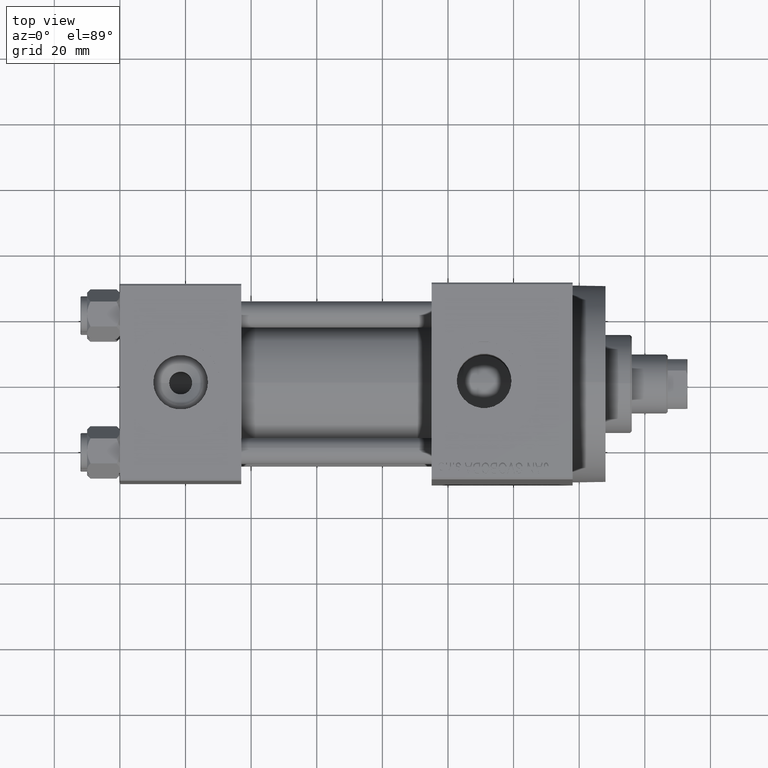
[diagram: clean part render]
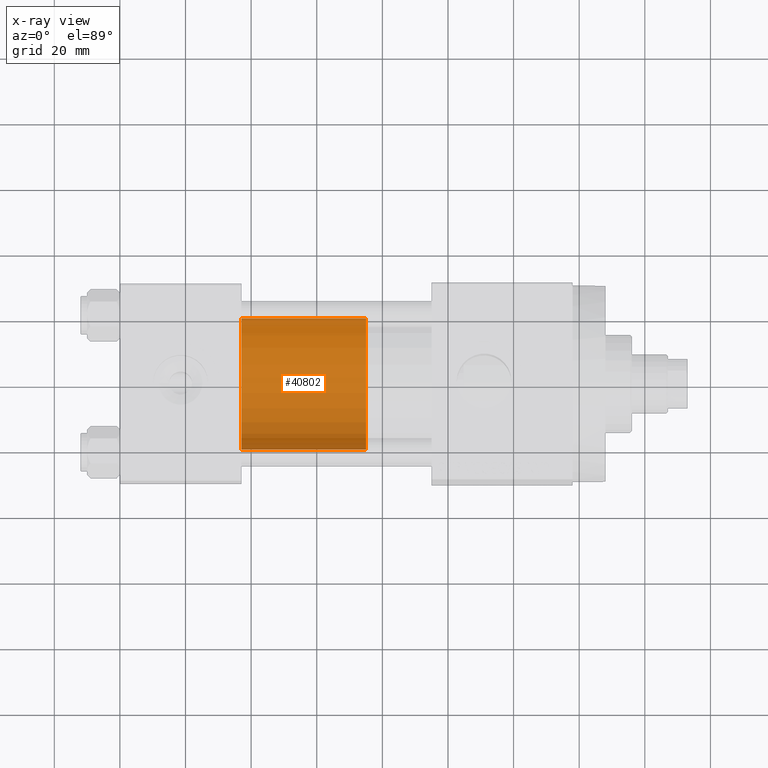
[diagram: x-ray — body ghosted, one internal face saturated and labeled with its STEP entity id]
A machine part, top view, then the same camera in x-ray: the body is ghosted and one INTERNAL B-rep face — a face not visible from any outside direction — is saturated and labeled: STEP entity #40802.
In plain terms, the highlighted cylindrical surface (partial cylindrical patch) has radius 20 mm, axis along (-1, 0, 0).
Its self-contained STEP definition (entity closure, byte-faithful):
#1300 = ORIENTED_EDGE ( 'NONE', *, *, #38335, .F. ) ;
#2979 = CIRCLE ( 'NONE', #20530, 20.00000000000000000 ) ;
#3203 = CARTESIAN_POINT ( 'NONE',  ( -20.00000000000000000, 0.000000000000000000, 0.000000000000000000 ) ) ;
#3412 = CARTESIAN_POINT ( 'NONE',  ( 0.000000000000000000, 0.000000000000000000, 38.00000000000000000 ) ) ;
#4544 = CARTESIAN_POINT ( 'NONE',  ( 20.00000000000000000, 2.449293598294706513E-15, 38.00000000000000000 ) ) ;
#6256 = VECTOR ( 'NONE', #42117, 1000.000000000000000 ) ;
#6992 = DIRECTION ( 'NONE',  ( -0.000000000000000000, -0.000000000000000000, -1.000000000000000000 ) ) ;
#7512 = EDGE_LOOP ( 'NONE', ( #37721, #45564, #16980, #1300 ) ) ;
#9842 = LINE ( 'NONE', #16790, #6256 ) ;
#11988 = DIRECTION ( 'NONE',  ( 1.000000000000000000, 0.000000000000000000, 0.000000000000000000 ) ) ;
#12828 = VERTEX_POINT ( 'NONE', #4544 ) ;
#14633 = DIRECTION ( 'NONE',  ( -1.000000000000000000, 0.000000000000000000, 0.000000000000000000 ) ) ;
#14639 = CIRCLE ( 'NONE', #41364, 20.00000000000000000 ) ;
#15793 = LINE ( 'NONE', #26771, #25287 ) ;
#16790 = CARTESIAN_POINT ( 'NONE',  ( -20.00000000000000000, 0.000000000000000000, 38.00000000000000000 ) ) ;
#16980 = ORIENTED_EDGE ( 'NONE', *, *, #27026, .T. ) ;
#17645 = EDGE_CURVE ( 'NONE', #12828, #28840, #14639, .T. ) ;
#18072 = CARTESIAN_POINT ( 'NONE',  ( -20.00000000000000000, 0.000000000000000000, 38.00000000000000000 ) ) ;
#20530 = AXIS2_PLACEMENT_3D ( 'NONE', #41625, #44726, #11988 ) ;
#21308 = CYLINDRICAL_SURFACE ( 'NONE', #37667, 20.00000000000000000 ) ;
#25287 = VECTOR ( 'NONE', #41358, 1000.000000000000000 ) ;
#26771 = CARTESIAN_POINT ( 'NONE',  ( 20.00000000000000000, 2.449293598294706513E-15, 38.00000000000000000 ) ) ;
#27026 = EDGE_CURVE ( 'NONE', #38455, #35488, #2979, .T. ) ;
#28840 = VERTEX_POINT ( 'NONE', #18072 ) ;
#32650 = EDGE_CURVE ( 'NONE', #12828, #38455, #15793, .T. ) ;
#32880 = DIRECTION ( 'NONE',  ( 0.000000000000000000, 0.000000000000000000, 1.000000000000000000 ) ) ;
#33343 = DIRECTION ( 'NONE',  ( 1.000000000000000000, 0.000000000000000000, 0.000000000000000000 ) ) ;
#33583 = CARTESIAN_POINT ( 'NONE',  ( 0.000000000000000000, 0.000000000000000000, 38.00000000000000000 ) ) ;
#35488 = VERTEX_POINT ( 'NONE', #3203 ) ;
#36105 = CARTESIAN_POINT ( 'NONE',  ( 20.00000000000000000, 2.449293598294706513E-15, 0.000000000000000000 ) ) ;
#36362 = FACE_OUTER_BOUND ( 'NONE', #7512, .T. ) ;
#37667 = AXIS2_PLACEMENT_3D ( 'NONE', #3412, #6992, #14633 ) ;
#37721 = ORIENTED_EDGE ( 'NONE', *, *, #17645, .F. ) ;
#38335 = EDGE_CURVE ( 'NONE', #28840, #35488, #9842, .T. ) ;
#38455 = VERTEX_POINT ( 'NONE', #36105 ) ;
#40802 = ADVANCED_FACE ( 'NONE', ( #36362 ), #21308, .T. ) ;
#41358 = DIRECTION ( 'NONE',  ( -0.000000000000000000, -0.000000000000000000, -1.000000000000000000 ) ) ;
#41364 = AXIS2_PLACEMENT_3D ( 'NONE', #33583, #32880, #33343 ) ;
#41625 = CARTESIAN_POINT ( 'NONE',  ( 0.000000000000000000, 0.000000000000000000, 0.000000000000000000 ) ) ;
#42117 = DIRECTION ( 'NONE',  ( -0.000000000000000000, -0.000000000000000000, -1.000000000000000000 ) ) ;
#44726 = DIRECTION ( 'NONE',  ( 0.000000000000000000, 0.000000000000000000, 1.000000000000000000 ) ) ;
#45564 = ORIENTED_EDGE ( 'NONE', *, *, #32650, .T. ) ;